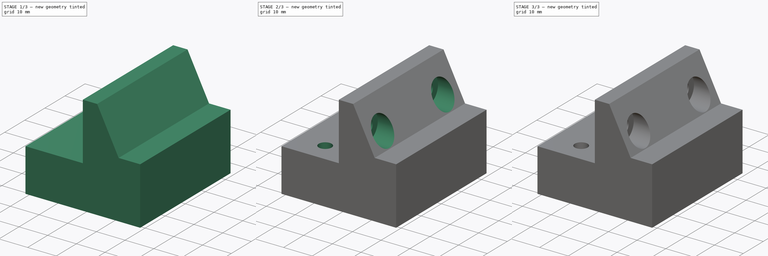
[diagram: build sequence overview — one tinted view per stage of 3, left to right]
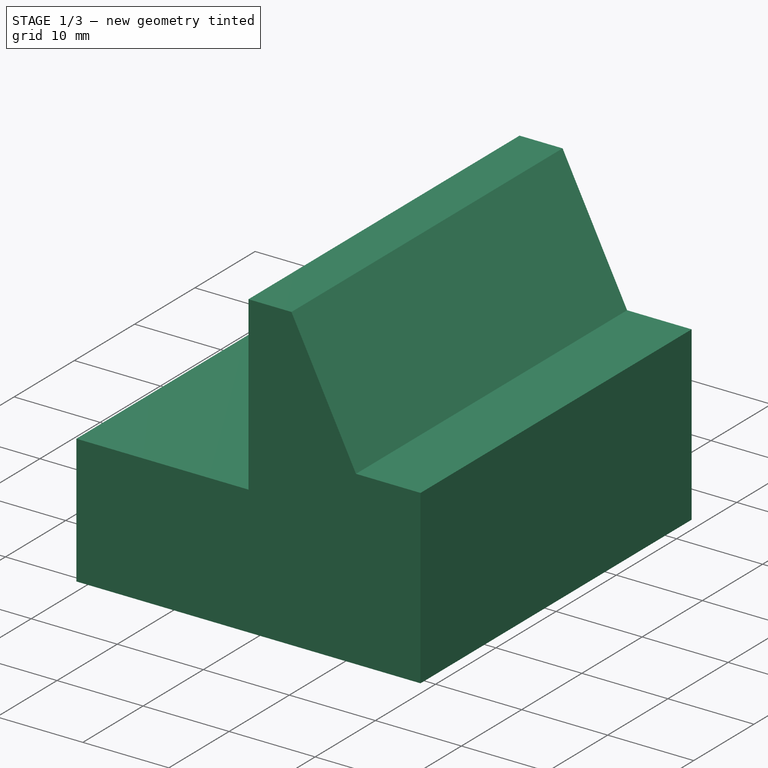
[diagram: stage 1 of 3 — iso view after this stage's code; geometry added in this stage tinted green]
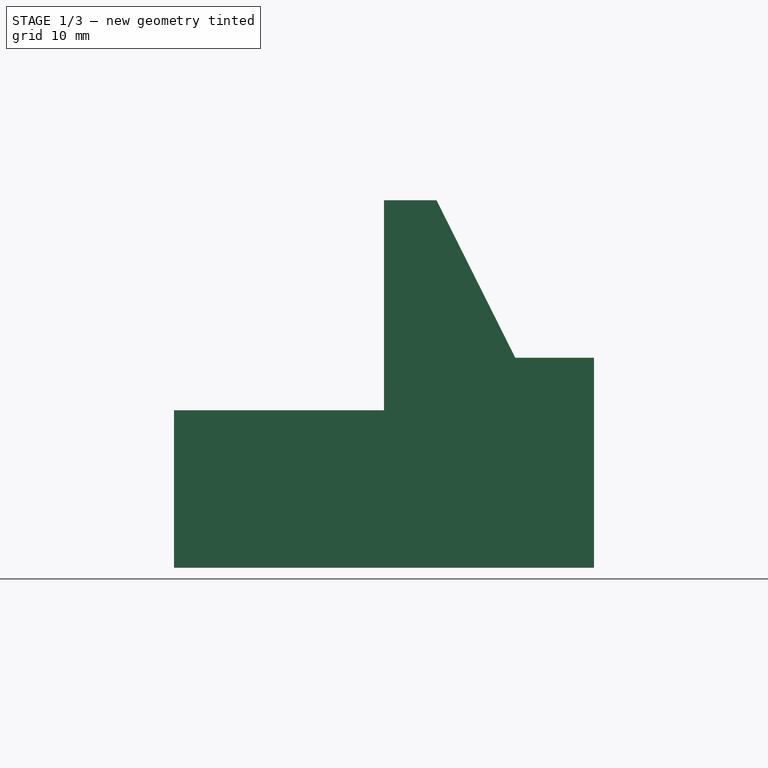
[diagram: stage 1 of 3 — front view after this stage's code; geometry added in this stage tinted green]
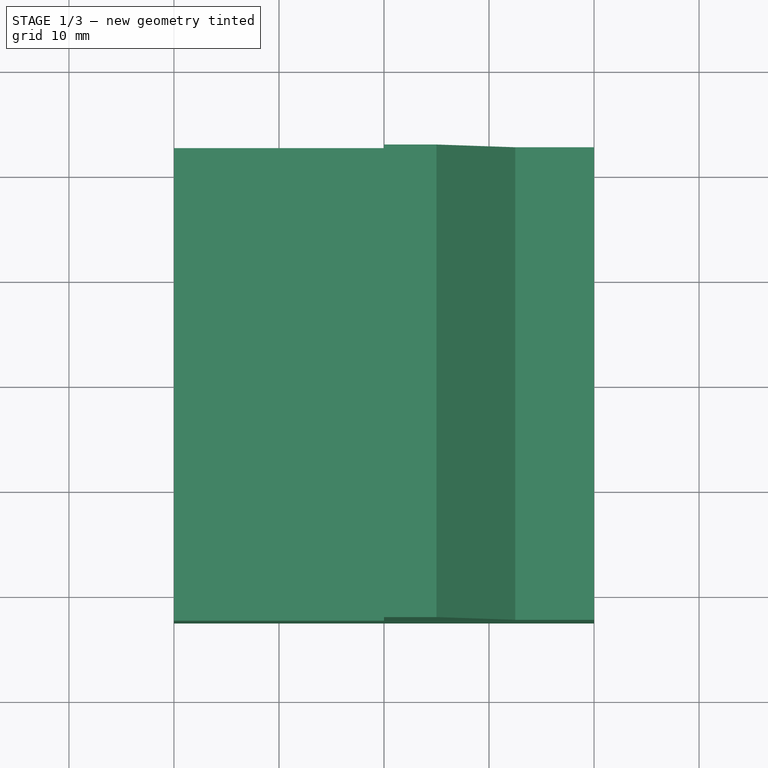
[diagram: stage 1 of 3 — top view after this stage's code; geometry added in this stage tinted green]
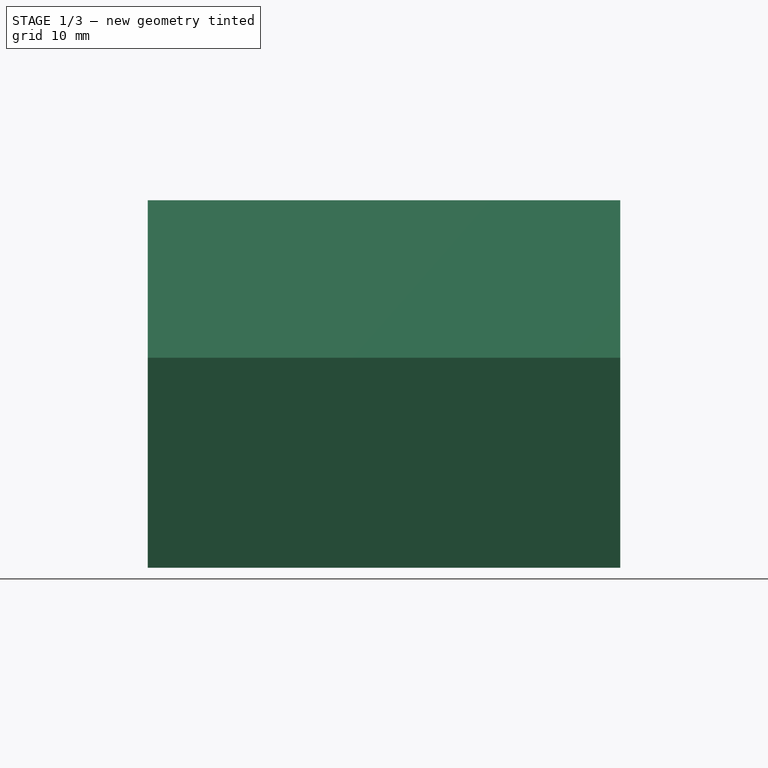
[diagram: stage 1 of 3 — right view after this stage's code; geometry added in this stage tinted green]
FCSTD DOCUMENT
Label: Z-nut-3
objects: Sketcher::SketchObject×7, PartDesign::Pocket×6, PartDesign::Pad×1
note: 21 computed .brp shape members not serialized (recipe doc carries the construction recipe); baked Part::Feature solids carry a one-line shape summary decoded from their .brp

FEATURE [Sketcher::SketchObject] Sketch
  sketch-geometry (4):
    g0: LineSegment StartX=-20 StartY=-22.5 StartZ=0 EndX=20 EndY=-22.5 EndZ=0
    g1: LineSegment StartX=20 StartY=-22.5 StartZ=0 EndX=20 EndY=22.5 EndZ=0
    g2: LineSegment StartX=20 StartY=22.5 StartZ=0 EndX=-20 EndY=22.5 EndZ=0
    g3: LineSegment StartX=-20 StartY=22.5 StartZ=0 EndX=-20 EndY=-22.5 EndZ=0
  constraints (12):
    c: Coincident(g0,g1)
    c: Coincident(g1,g2)
    c: Coincident(g2,g3)
    c: Coincident(g3,g0)
    c: Horizontal(g0)
    c: Horizontal(g2)
    c: Vertical(g1)
    c: Vertical(g3)
    c: DistanceX(g0) = 40
    c: DistanceY(g3) = -45
    c: Symmetric(g0,g0,g-2)
    c: Symmetric(g0,g2,g-1)
FEATURE [PartDesign::Pad] Pad
  Length = 35
  Length2 = 100
  Sketch = -> Sketch
  Type = 0
FEATURE [Sketcher::SketchObject] Sketch001
  ExternalGeometry = -> [Pad]
  Placement = pos=(0,-22.5,0) rot=(1,0,0;1.5708rad)
  Support = -> Pad [Face1]
  sketch-geometry (8):
    g0: LineSegment StartX=-21 StartY=15 StartZ=0 EndX=0 EndY=15 EndZ=0
    g1: LineSegment StartX=0 StartY=15 StartZ=0 EndX=0 EndY=35 EndZ=0
    g2: LineSegment StartX=0 StartY=35 StartZ=0 EndX=5 EndY=35 EndZ=0
    g3: LineSegment StartX=5 StartY=35 StartZ=0 EndX=12.5 EndY=20 EndZ=0
    g4: LineSegment StartX=12.5 StartY=20 StartZ=0 EndX=21 EndY=20 EndZ=0
    g5: LineSegment StartX=21 StartY=20 StartZ=0 EndX=21 EndY=36 EndZ=0
    g6: LineSegment StartX=21 StartY=36 StartZ=0 EndX=-21 EndY=36 EndZ=0
    g7: LineSegment StartX=-21 StartY=36 StartZ=0 EndX=-21 EndY=15 EndZ=0
  constraints (24):
    c: Horizontal(g0)
    c: Coincident(g0,g1)
    c: Vertical(g1)
    c: Coincident(g1,g2)
    c: Horizontal(g2)
    c: Coincident(g2,g3)
    c: Coincident(g3,g4)
    c: Horizontal(g4)
    c: Coincident(g4,g5)
    c: Vertical(g5)
    c: Coincident(g5,g6)
    c: Horizontal(g6)
    c: Coincident(g6,g7)
    c: Vertical(g7)
    c: Coincident(g7,g0)
    c: PointOnObject(g0,g-2)
    c: Distance(g-1,g0) = 15
    c: DistanceX(g-1,g3) = 12.5
    c: Distance(g2) = 5
    c: DistanceX(g6) = -21
    c: DistanceY(g6) = 36
    c: PointOnObject(g1,g-3)
    c: DistanceX(g5) = 21
    c: DistanceY(g4) = 20
FEATURE [PartDesign::Pocket] Pocket
  Length = 5
  Sketch = -> Sketch001
  Type = 1
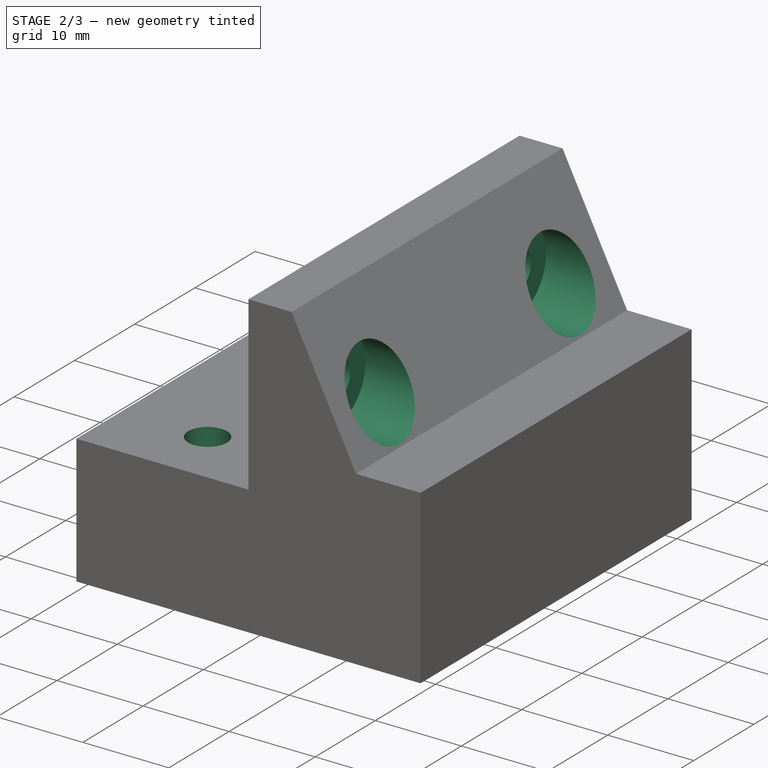
[diagram: stage 2 of 3 — iso view after this stage's code; geometry added in this stage tinted green]
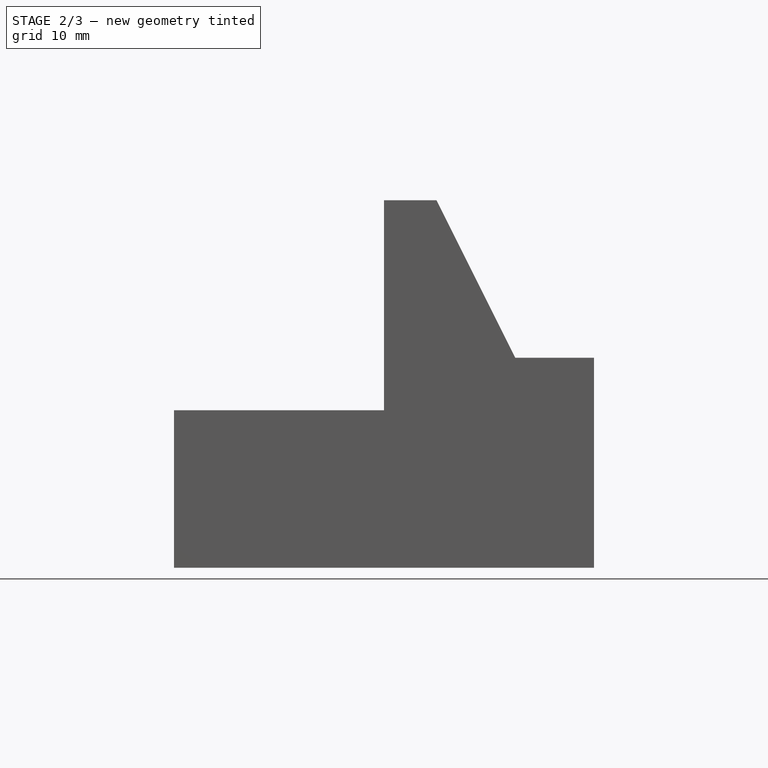
[diagram: stage 2 of 3 — front view after this stage's code; geometry added in this stage tinted green]
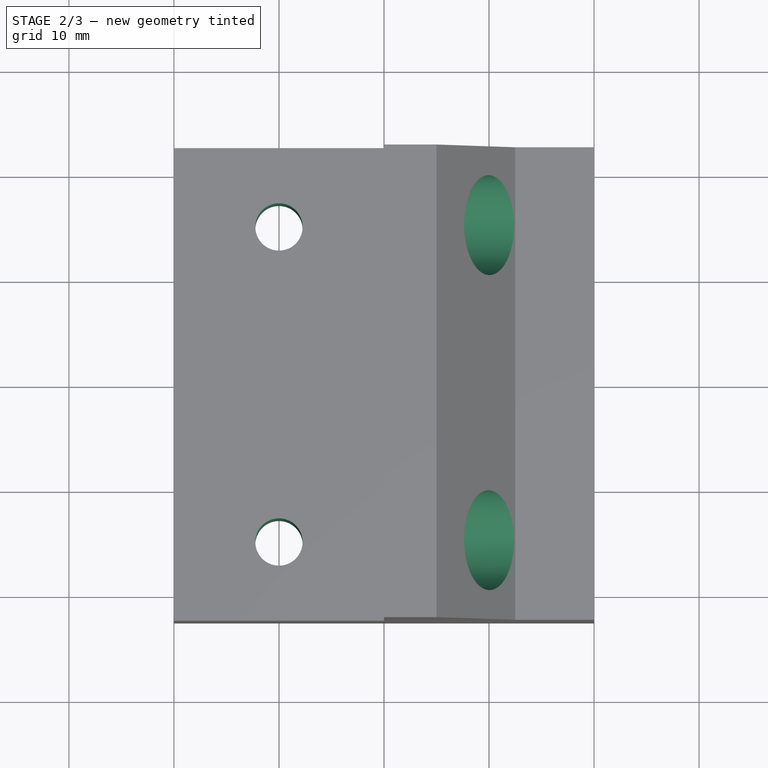
[diagram: stage 2 of 3 — top view after this stage's code; geometry added in this stage tinted green]
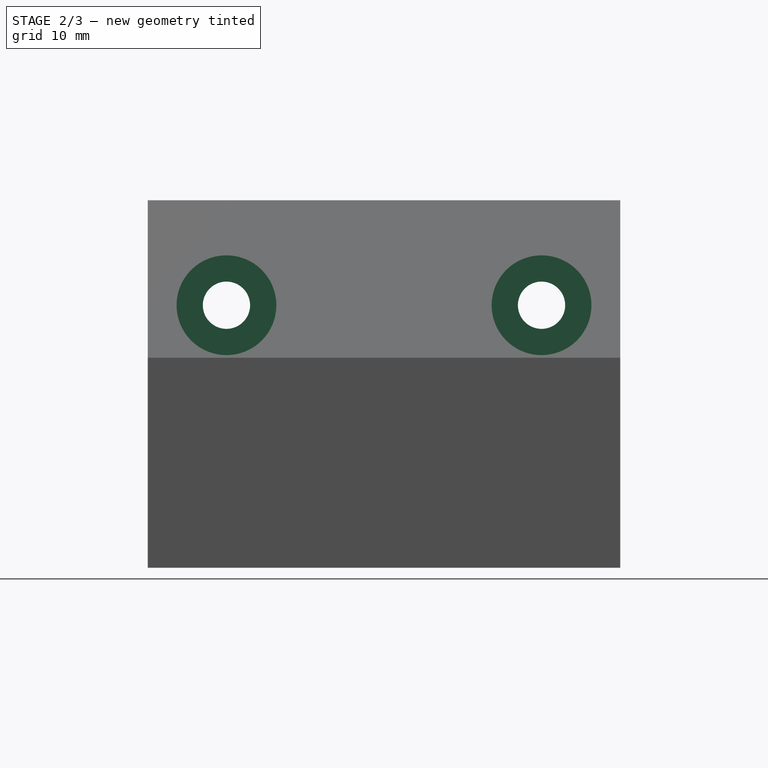
[diagram: stage 2 of 3 — right view after this stage's code; geometry added in this stage tinted green]
FEATURE [Sketcher::SketchObject] Sketch002
  Placement = pos=(0,0,15) rot=(0,0,1;0rad)
  Support = -> Pocket [Face10]
  sketch-geometry (2):
    g0: Circle CenterX=-10 CenterY=15 CenterZ=0 NormalX=0 NormalY=0 NormalZ=1 Radius=2.25
    g1: Circle CenterX=-10 CenterY=-15 CenterZ=0 NormalX=0 NormalY=0 NormalZ=1 Radius=2.25
  constraints (5):
    c: Equal(g0,g1)
    c: Radius(g0) = 2.25
    c: Symmetric(g0,g1,g-1)
    c: DistanceX(g1) = -10
    c: DistanceY(g1) = -15
FEATURE [PartDesign::Pocket] Pocket001
  Length = 5
  Sketch = -> Sketch002
  Type = 1
FEATURE [Sketcher::SketchObject] Sketch003
  Placement = pos=(0,0,0) rot=(0.57735,-0.57735,-0.57735;2.0944rad)
  Support = -> Pocket001 [Face7]
  sketch-geometry (2):
    g0: Circle CenterX=-15 CenterY=25 CenterZ=0 NormalX=0 NormalY=0 NormalZ=1 Radius=2.25
    g1: Circle CenterX=15 CenterY=25 CenterZ=0 NormalX=0 NormalY=0 NormalZ=1 Radius=2.25
  constraints (5):
    c: Equal(g1,g0)
    c: Symmetric(g0,g1,g-2)
    c: Radius(g1) = 2.25
    c: DistanceX(g0) = -15
    c: DistanceY(g0) = 25
FEATURE [PartDesign::Pocket] Pocket002
  Length = 5
  Sketch = -> Sketch003
  Type = 1
FEATURE [Sketcher::SketchObject] Sketch004
  Placement = pos=(20,0,0) rot=(0.57735,0.57735,0.57735;2.0944rad)
  Support = -> Pocket002 [Face3]
  sketch-geometry (2):
    g0: Circle CenterX=-15 CenterY=25 CenterZ=0 NormalX=0 NormalY=0 NormalZ=1 Radius=4.75
    g1: Circle CenterX=15 CenterY=25 CenterZ=0 NormalX=0 NormalY=0 NormalZ=1 Radius=4.75
  constraints (5):
    c: Symmetric(g1,g0,g-2)
    c: Equal(g0,g1)
    c: Radius(g1) = 4.75
    c: DistanceX(g0) = -15
    c: DistanceY(g0) = 25
FEATURE [PartDesign::Pocket] Pocket003
  Length = 15
  Sketch = -> Sketch004
  Type = 0
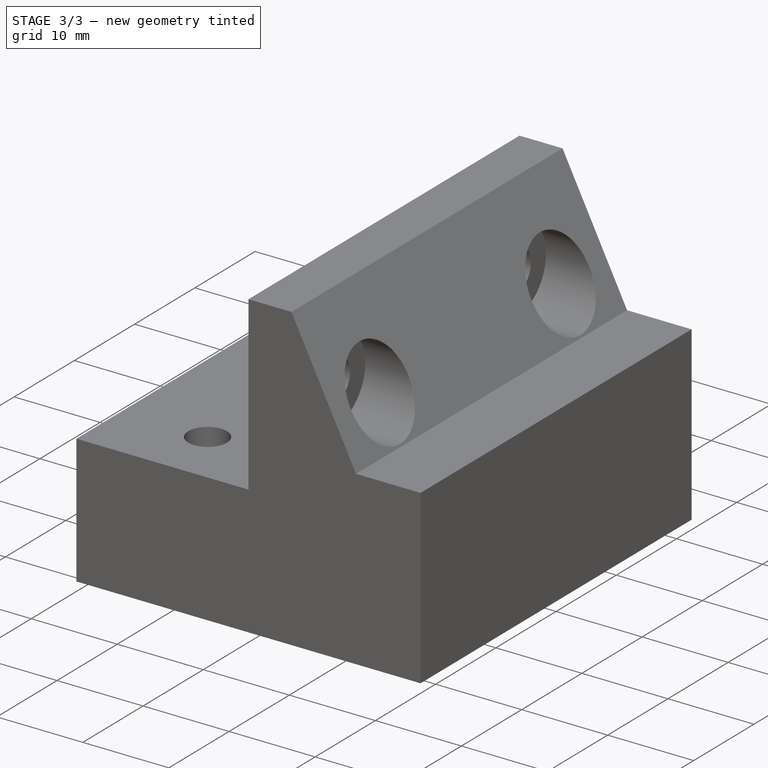
[diagram: stage 3 of 3 — iso view after this stage's code; geometry added in this stage tinted green]
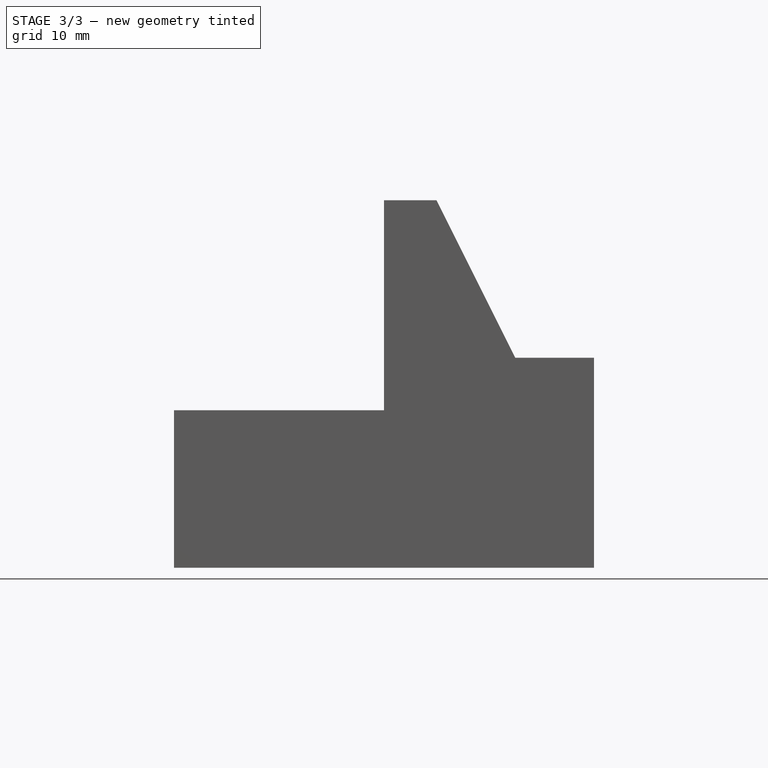
[diagram: stage 3 of 3 — front view after this stage's code; geometry added in this stage tinted green]
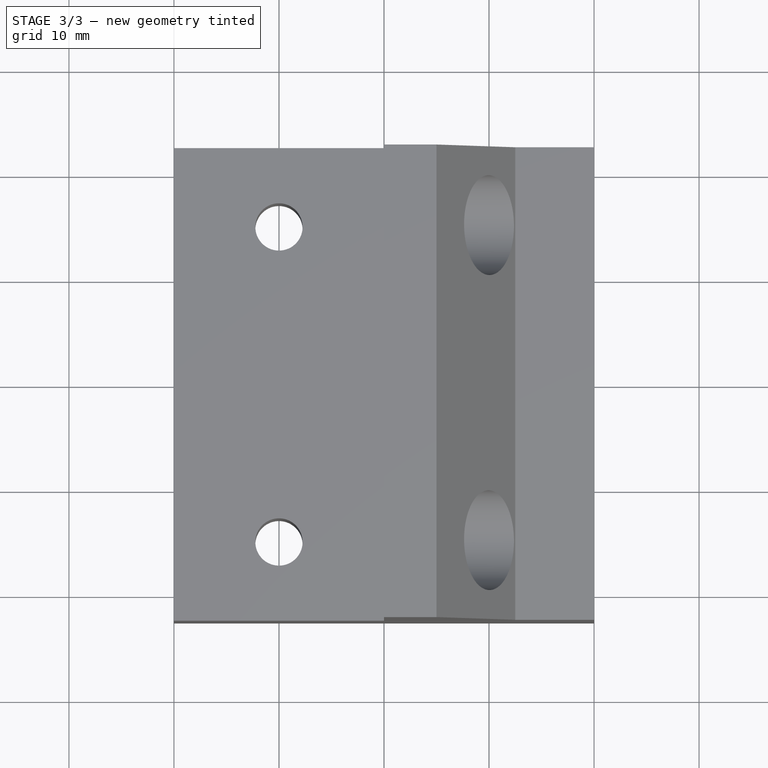
[diagram: stage 3 of 3 — top view after this stage's code; geometry added in this stage tinted green]
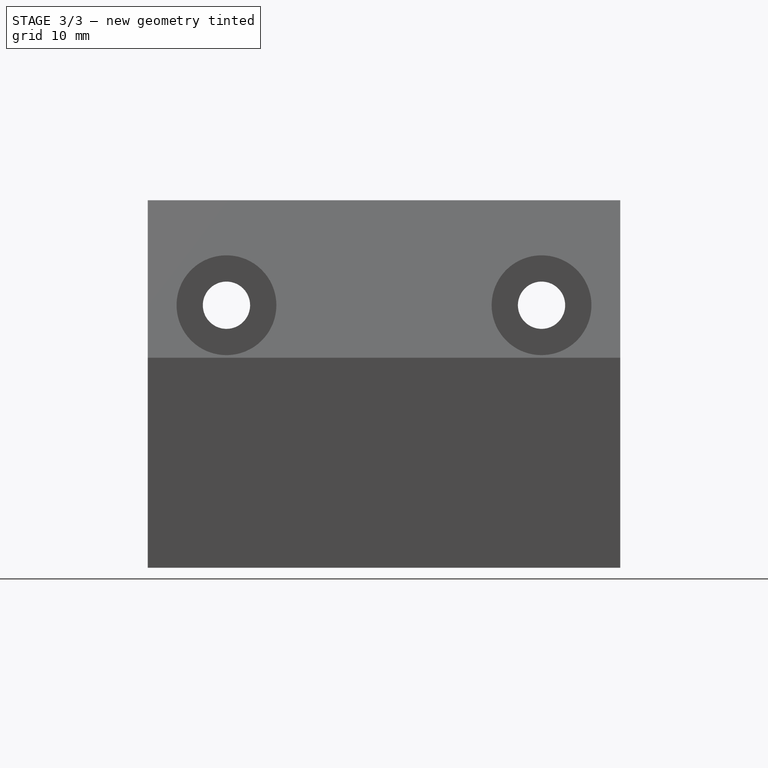
[diagram: stage 3 of 3 — right view after this stage's code; geometry added in this stage tinted green]
FEATURE [Sketcher::SketchObject] Sketch005
  Placement = pos=(-20,0,0) rot=(0.57735,-0.57735,-0.57735;2.0944rad)
  Support = -> Pocket003 [Face9]
  sketch-geometry (18):
    g0: LineSegment StartX=-18.7207 StartY=13.5 StartZ=0 EndX=-14.6793 EndY=13.5 EndZ=0
    g1: LineSegment StartX=-14.6793 StartY=13.5 StartZ=0 EndX=-12.6585 EndY=10 EndZ=0
    g2: LineSegment StartX=-12.6585 StartY=10 StartZ=0 EndX=-14.6793 EndY=6.5 EndZ=0
    g3: LineSegment StartX=-14.6793 StartY=6.5 StartZ=0 EndX=-18.7207 EndY=6.5 EndZ=0
    g4: LineSegment StartX=-18.7207 StartY=6.5 StartZ=0 EndX=-20.7415 EndY=10 EndZ=0
    g5: LineSegment StartX=-20.7415 StartY=10 StartZ=0 EndX=-18.7207 EndY=13.5 EndZ=0
    g6: LineSegment [constr] StartX=-16.7 StartY=10 StartZ=0 EndX=-14.6793 EndY=13.5 EndZ=0
    g7: LineSegment [constr] StartX=-18.7207 StartY=6.5 StartZ=0 EndX=-16.7 EndY=10 EndZ=0
    g8: LineSegment [constr] StartX=-16.7 StartY=10 StartZ=0 EndX=-18.7207 EndY=13.5 EndZ=0
    g9: LineSegment [constr] StartX=-16.7 StartY=10 StartZ=0 EndX=-14.6793 EndY=6.5 EndZ=0
    g10: LineSegment [constr] StartX=-20.7415 StartY=10 StartZ=0 EndX=-16.7 EndY=10 EndZ=0
    g11: LineSegment [constr] StartX=-16.7 StartY=10 StartZ=0 EndX=-12.6585 EndY=10 EndZ=0
    g12: LineSegment StartX=12.6585 StartY=10 StartZ=0 EndX=14.6793 EndY=6.5 EndZ=0
    g13: LineSegment StartX=14.6793 StartY=6.5 StartZ=0 EndX=18.7207 EndY=6.5 EndZ=0
    g14: LineSegment StartX=18.7207 StartY=6.5 StartZ=0 EndX=20.7415 EndY=10 EndZ=0
    g15: LineSegment StartX=20.7415 StartY=10 StartZ=0 EndX=18.7207 EndY=13.5 EndZ=0
    g16: LineSegment StartX=18.7207 StartY=13.5 StartZ=0 EndX=14.6793 EndY=13.5 EndZ=0
    g17: LineSegment StartX=14.6793 StartY=13.5 StartZ=0 EndX=12.6585 EndY=10 EndZ=0
  constraints (45):
    c: Horizontal(g0)
    c: Coincident(g0,g1)
    c: Coincident(g1,g2)
    c: Coincident(g2,g3)
    c: Horizontal(g3)
    c: Coincident(g3,g4)
    c: Coincident(g4,g5)
    c: Coincident(g5,g0)
    c: Equal(g5,g0)
    c: Coincident(g6,g0)
    c: Coincident(g7,g3)
    c: Coincident(g7,g6)
    c: Coincident(g8,g6)
    c: Coincident(g8,g0)
    c: Coincident(g9,g6)
    c: Coincident(g9,g2)
    c: Equal(g0,g1)
    c: Tangent(g6,g7)
    c: Tangent(g9,g8)
    c: Coincident(g10,g4)
    c: Coincident(g10,g6)
    c: Horizontal(g10)
    c: Coincident(g11,g6)
    c: Coincident(g11,g1)
    c: Horizontal(g11)
    c: Equal(g7,g9)
    c: Equal(g9,g11)
    c: Equal(g11,g6)
    c: Equal(g6,g8)
    c: Equal(g8,g10)
    c: DistanceY(g6) = 10
    c: DistanceY(g2,g0) = 7
    c: Coincident(g12,g13)
    c: Coincident(g13,g14)
    c: Coincident(g14,g15)
    c: Coincident(g15,g16)
    c: Coincident(g16,g17)
    c: Coincident(g17,g12)
    c: Symmetric(g0,g15,g-2)
    c: Symmetric(g14,g4,g-2)
    c: Symmetric(g13,g3,g-2)
    c: Symmetric(g16,g0,g-2)
    c: Symmetric(g12,g1,g-2)
    c: Symmetric(g12,g2,g-2)
    c: DistanceX(g1,g14) = 33.4
FEATURE [PartDesign::Pocket] Pocket004
  Length = 4
  Sketch = -> Sketch005
  Type = 0
FEATURE [Sketcher::SketchObject] Sketch006
  Placement = pos=(-20,0,0) rot=(0.57735,-0.57735,-0.57735;2.0944rad)
  Support = -> Pocket004 [Face9]
  sketch-geometry (2):
    g0: Circle CenterX=-16.7 CenterY=10 CenterZ=0 NormalX=0 NormalY=0 NormalZ=1 Radius=2.25
    g1: Circle CenterX=16.7 CenterY=10 CenterZ=0 NormalX=0 NormalY=0 NormalZ=1 Radius=2.25
  constraints (5):
    c: Symmetric(g0,g1,g-2)
    c: Equal(g0,g1)
    c: Radius(g1) = 2.25
    c: Distance(g0,g1) = 33.4
    c: DistanceY(g-1,g0) = 10
FEATURE [PartDesign::Pocket] Pocket005
  Length = 7
  Sketch = -> Sketch006
  Type = 0
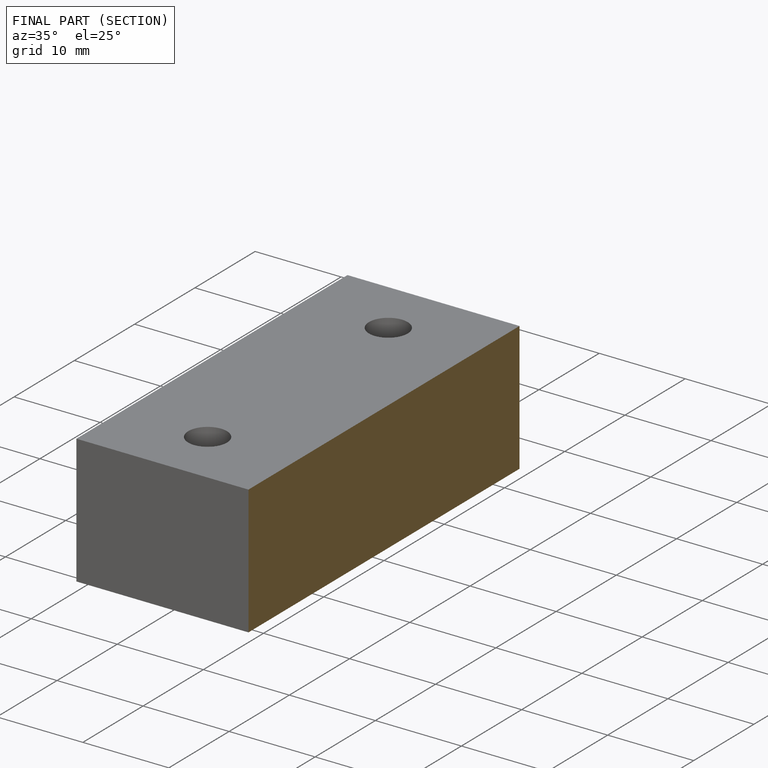
[diagram: finished part — half-section view (interior)]
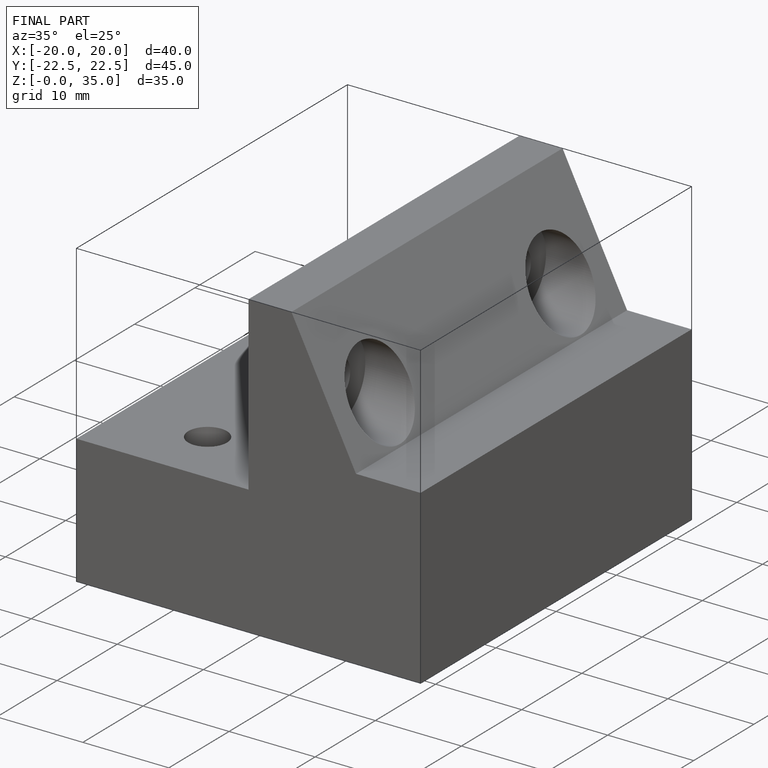
[diagram: finished part — iso view with bounding-box wireframe]
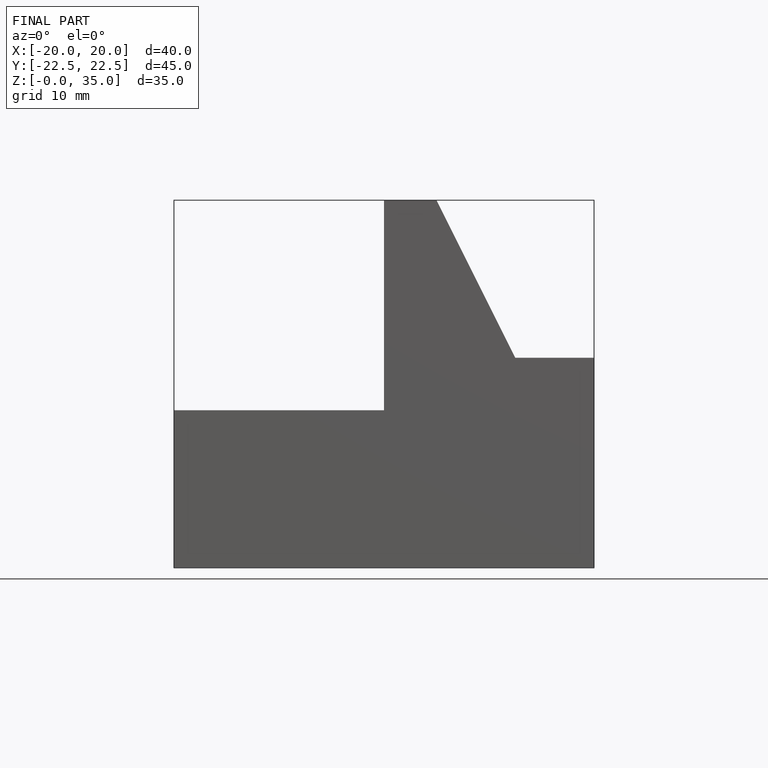
[diagram: finished part — front view with bounding-box wireframe]
